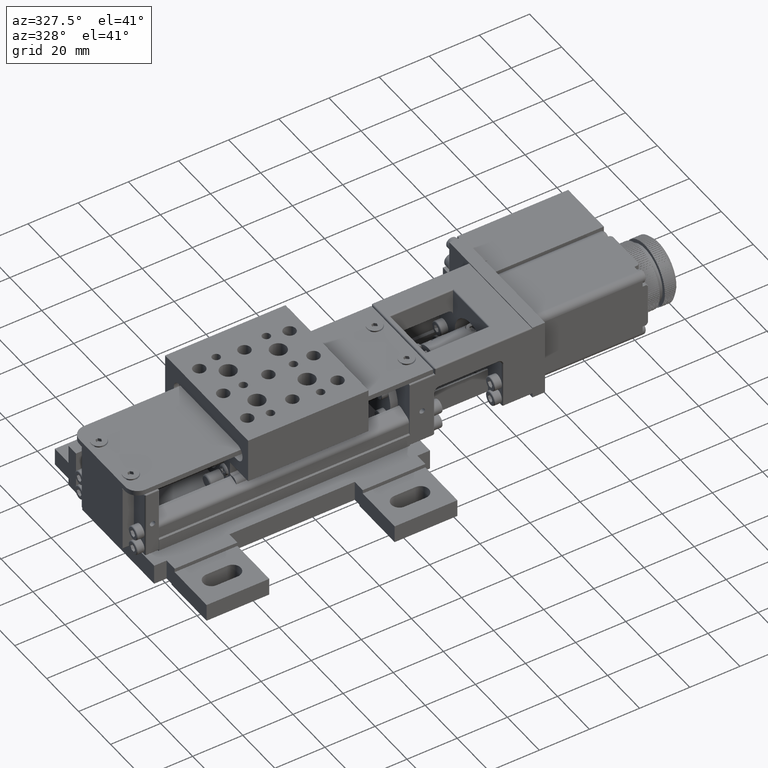
[diagram: clean part render]
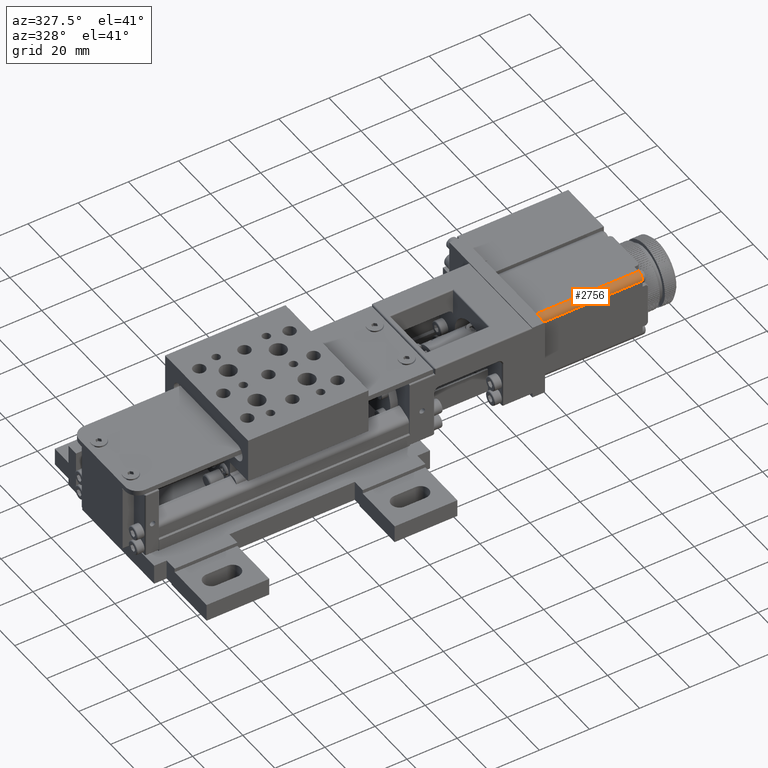
[diagram: same view with one face highlighted and labeled with its STEP entity id]
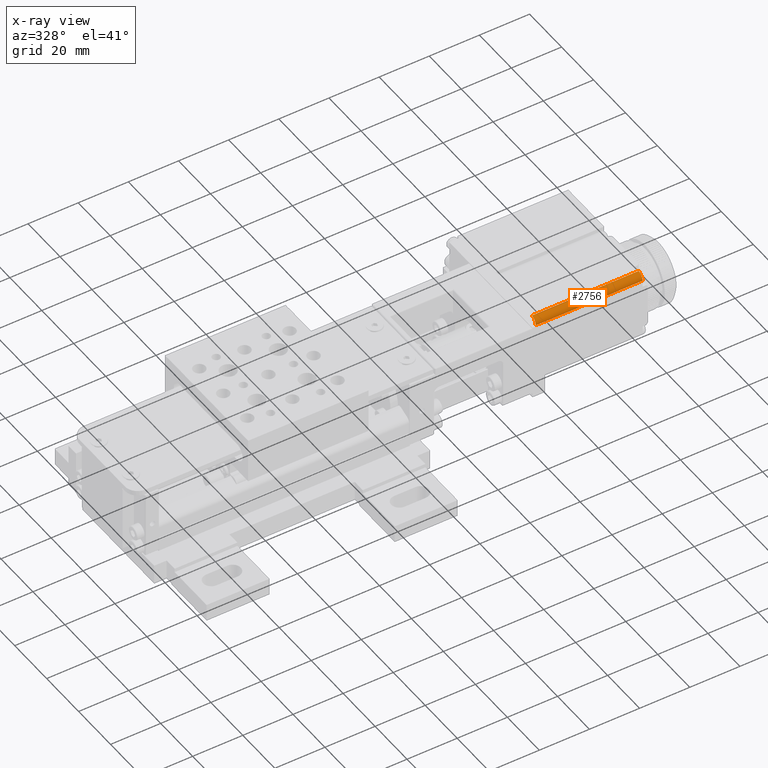
[diagram: x-ray of the same camera — body ghosted, the highlighted face saturated]
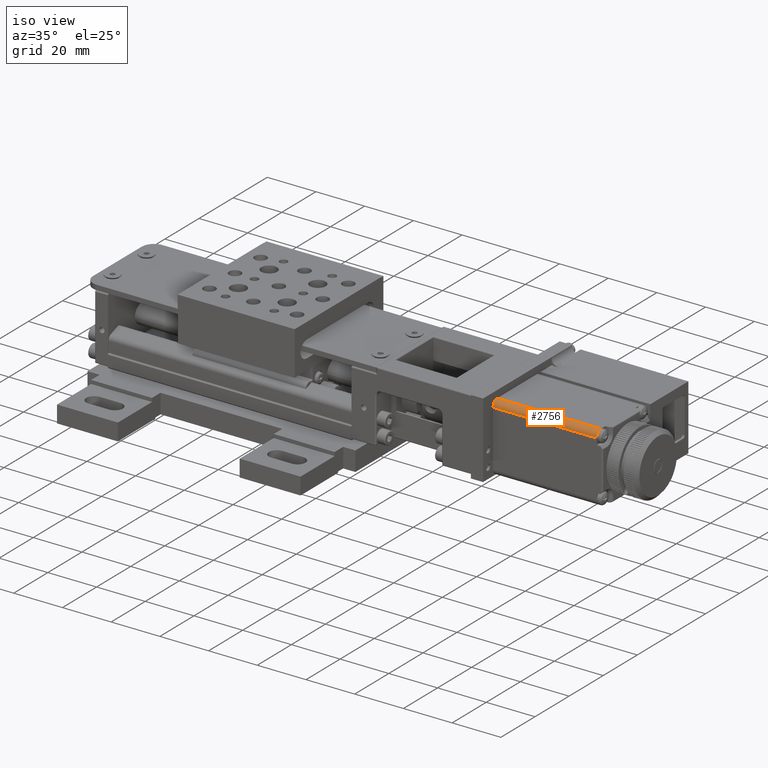
[diagram: same view with one face highlighted and labeled with its STEP entity id]
A machine part, auxiliary view. The second image highlights one B-rep face of the part: STEP entity #2756.
The next image is the same camera in x-ray: the body ghosted, the highlighted face saturated — about 0% of this face is hidden behind the body in this view.
A second angle (iso view) of the same face is appended — the face is thin or edge-on in the first view.
In plain terms, the highlighted cylindrical surface (edge-blend (fillet) strip) has radius 2.5 mm, axis along (-1, 0, 0).
Its self-contained STEP definition (entity closure, byte-faithful):
#2756=ADVANCED_FACE('',(#5079),#40565,.T.);
#5079=FACE_OUTER_BOUND('',#7507,.T.);
#7507=EDGE_LOOP('',(#13737,#13738,#13739,#13740,#13741));
#13737=ORIENTED_EDGE('',*,*,#24859,.T.);
#13738=ORIENTED_EDGE('',*,*,#24860,.F.);
#13739=ORIENTED_EDGE('',*,*,#24853,.F.);
#13740=ORIENTED_EDGE('',*,*,#27823,.F.);
#13741=ORIENTED_EDGE('',*,*,#27822,.F.);
#24853=EDGE_CURVE('',#37510,#37486,#30897,.T.);
#24859=EDGE_CURVE('',#37517,#37487,#30903,.T.);
#24860=EDGE_CURVE('',#37486,#37487,#34345,.T.);
#27822=EDGE_CURVE('',#37517,#39497,#35145,.T.);
#27823=EDGE_CURVE('',#39497,#37510,#35146,.T.);
#30897=B_SPLINE_CURVE_WITH_KNOTS('',1,(#68254,#68255),.UNSPECIFIED.,.F.,
 .F.,(2,2),(0.,42.600000000003),.UNSPECIFIED.);
#30903=B_SPLINE_CURVE_WITH_KNOTS('',1,(#68266,#68267),.UNSPECIFIED.,.F.,
 .F.,(2,2),(0.,42.600000000003),.UNSPECIFIED.);
#34345=(
BOUNDED_CURVE()
B_SPLINE_CURVE(2,(#68268,#68269,#68270),.UNSPECIFIED.,.F.,.F.)
B_SPLINE_CURVE_WITH_KNOTS((3,3),(-3.92699081698724,0.),.UNSPECIFIED.)
CURVE()
GEOMETRIC_REPRESENTATION_ITEM()
RATIONAL_B_SPLINE_CURVE((1.,0.707106781186548,1.))
REPRESENTATION_ITEM('')
);
#35145=(
BOUNDED_CURVE()
B_SPLINE_CURVE(2,(#77647,#77648,#77649),.UNSPECIFIED.,.F.,.F.)
B_SPLINE_CURVE_WITH_KNOTS((3,3),(0.,0.942477796074158),.UNSPECIFIED.)
CURVE()
GEOMETRIC_REPRESENTATION_ITEM()
RATIONAL_B_SPLINE_CURVE((1.,0.982287250728793,1.))
REPRESENTATION_ITEM('')
);
#35146=(
BOUNDED_CURVE()
B_SPLINE_CURVE(2,(#77650,#77651,#77652),.UNSPECIFIED.,.F.,.F.)
B_SPLINE_CURVE_WITH_KNOTS((3,3),(0.942477796074158,3.92699081698724),
 .UNSPECIFIED.)
CURVE()
GEOMETRIC_REPRESENTATION_ITEM()
RATIONAL_B_SPLINE_CURVE((1.,0.827080574274249,1.))
REPRESENTATION_ITEM('')
);
#37486=VERTEX_POINT('',#58803);
#37487=VERTEX_POINT('',#58804);
#37510=VERTEX_POINT('',#58827);
#37517=VERTEX_POINT('',#58834);
#39497=VERTEX_POINT('',#60814);
#40565=CYLINDRICAL_SURFACE('',#41782,2.50000000000001);
#41782=AXIS2_PLACEMENT_3D('',#49573,#43838,$);
#43838=DIRECTION('',(-1.,0.,0.));
#49573=CARTESIAN_POINT('',(74.3000011422018,-9.30000090285296,33.5026215020155));
#58803=CARTESIAN_POINT('',(53.0000011422005,-11.800000902853,33.5026215020174));
#58804=CARTESIAN_POINT('',(53.0000011422005,-9.30000090285106,36.0026215020155));
#58827=CARTESIAN_POINT('',(95.6000011422035,-11.8000009028517,33.5026215020196));
#58834=CARTESIAN_POINT('',(95.6000011422035,-9.30000090284976,36.0026215020177));
#60814=CARTESIAN_POINT('',(95.6000011422035,-10.220312284559,35.8270627167401));
#68254=CARTESIAN_POINT('',(95.6000011422035,-11.8000009028517,33.5026215020196));
#68255=CARTESIAN_POINT('',(53.0000011422005,-11.800000902853,33.5026215020174));
#68266=CARTESIAN_POINT('',(95.6000011422035,-9.30000090284976,36.0026215020177));
#68267=CARTESIAN_POINT('',(53.0000011422005,-9.30000090285106,36.0026215020155));
#68268=CARTESIAN_POINT('',(53.0000011422005,-11.800000902853,33.5026215020174));
#68269=CARTESIAN_POINT('',(53.0000011422002,-11.8000009028511,36.0026215020174));
#68270=CARTESIAN_POINT('',(53.0000011422005,-9.30000090285106,36.0026215020155));
#77647=CARTESIAN_POINT('',(95.6000011422035,-9.30000090284976,36.0026215020177));
#77648=CARTESIAN_POINT('',(95.6000011422035,-9.77690140839474,36.0026215020181));
#77649=CARTESIAN_POINT('',(95.6000011422035,-10.220312284559,35.8270627167401));
#77650=CARTESIAN_POINT('',(95.6000011422035,-10.220312284559,35.8270627167401));
#77651=CARTESIAN_POINT('',(95.6000011422035,-11.8000009028504,35.201619747583));
#77652=CARTESIAN_POINT('',(95.6000011422035,-11.8000009028517,33.5026215020196));